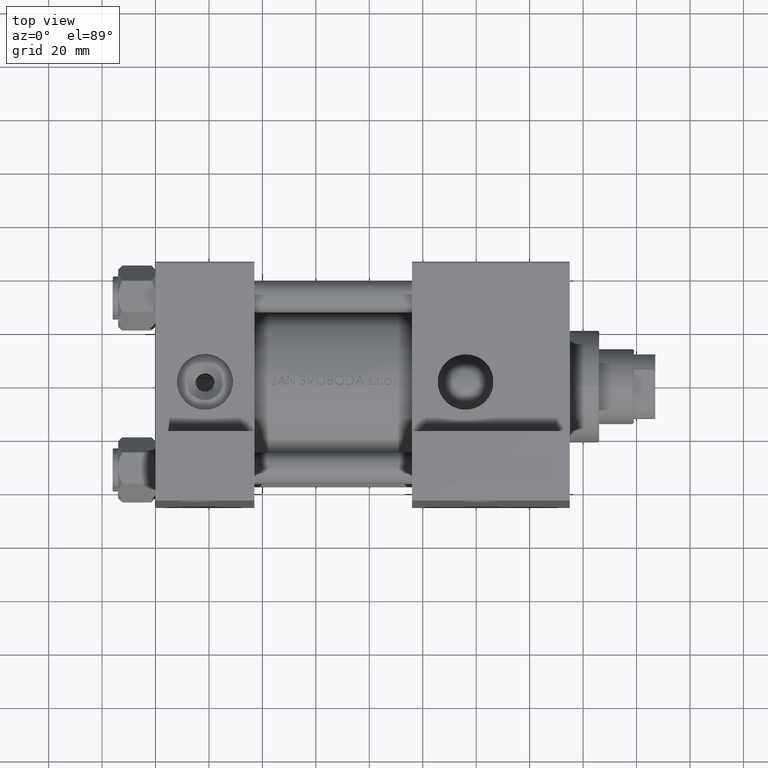
[diagram: clean part render]
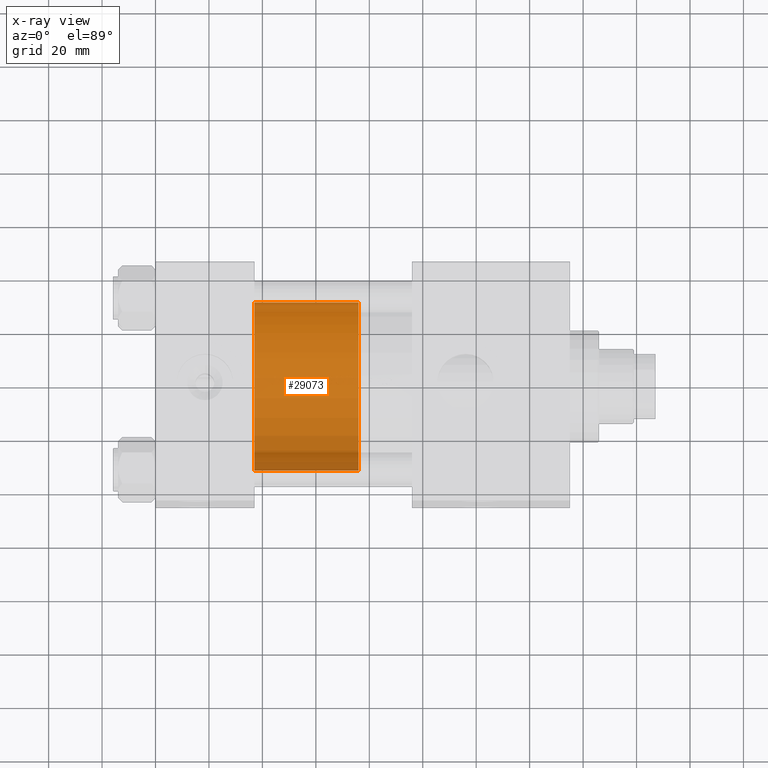
[diagram: x-ray — body ghosted, one internal face saturated and labeled with its STEP entity id]
A machine part, top view, then the same camera in x-ray: the body is ghosted and one INTERNAL B-rep face — a face not visible from any outside direction — is saturated and labeled: STEP entity #29073.
In plain terms, the highlighted cylindrical surface (partial cylindrical patch) has radius 31.5 mm, axis along (-1, 0, 0).
Its self-contained STEP definition (entity closure, byte-faithful):
#662 = CARTESIAN_POINT ( 'NONE',  ( -31.50000000000000000, 0.000000000000000000, 39.00000000000000000 ) ) ;
#1297 = CARTESIAN_POINT ( 'NONE',  ( 0.000000000000000000, 0.000000000000000000, 0.000000000000000000 ) ) ;
#2380 = ORIENTED_EDGE ( 'NONE', *, *, #33021, .F. ) ;
#2455 = ORIENTED_EDGE ( 'NONE', *, *, #7659, .F. ) ;
#4450 = VERTEX_POINT ( 'NONE', #43824 ) ;
#4986 = VECTOR ( 'NONE', #28408, 1000.000000000000000 ) ;
#6271 = CARTESIAN_POINT ( 'NONE',  ( 31.50000000000000000, 3.857637417314162689E-15, 39.00000000000000000 ) ) ;
#6277 = EDGE_CURVE ( 'NONE', #45935, #4450, #28724, .T. ) ;
#6875 = AXIS2_PLACEMENT_3D ( 'NONE', #23984, #38662, #23747 ) ;
#7659 = EDGE_CURVE ( 'NONE', #32216, #43137, #14160, .T. ) ;
#8480 = EDGE_CURVE ( 'NONE', #32216, #45935, #35632, .T. ) ;
#9298 = CYLINDRICAL_SURFACE ( 'NONE', #6875, 31.50000000000000000 ) ;
#10830 = VECTOR ( 'NONE', #31467, 1000.000000000000000 ) ;
#14160 = CIRCLE ( 'NONE', #41814, 31.50000000000000000 ) ;
#23555 = LINE ( 'NONE', #27401, #10830 ) ;
#23747 = DIRECTION ( 'NONE',  ( -1.000000000000000000, 0.000000000000000000, 0.000000000000000000 ) ) ;
#23984 = CARTESIAN_POINT ( 'NONE',  ( 0.000000000000000000, 0.000000000000000000, 39.00000000000000000 ) ) ;
#25742 = ORIENTED_EDGE ( 'NONE', *, *, #8480, .T. ) ;
#26620 = CARTESIAN_POINT ( 'NONE',  ( 31.50000000000000000, 3.857637417314162689E-15, 0.000000000000000000 ) ) ;
#27401 = CARTESIAN_POINT ( 'NONE',  ( -31.50000000000000000, 0.000000000000000000, 39.00000000000000000 ) ) ;
#28408 = DIRECTION ( 'NONE',  ( -0.000000000000000000, -0.000000000000000000, -1.000000000000000000 ) ) ;
#28724 = CIRCLE ( 'NONE', #47192, 31.50000000000000000 ) ;
#29073 = ADVANCED_FACE ( 'NONE', ( #46366 ), #9298, .T. ) ;
#30051 = EDGE_LOOP ( 'NONE', ( #2455, #25742, #34231, #2380 ) ) ;
#30712 = DIRECTION ( 'NONE',  ( 1.000000000000000000, 0.000000000000000000, 0.000000000000000000 ) ) ;
#31467 = DIRECTION ( 'NONE',  ( -0.000000000000000000, -0.000000000000000000, -1.000000000000000000 ) ) ;
#31986 = CARTESIAN_POINT ( 'NONE',  ( 31.50000000000000000, 3.857637417314162689E-15, 39.00000000000000000 ) ) ;
#32216 = VERTEX_POINT ( 'NONE', #31986 ) ;
#32726 = DIRECTION ( 'NONE',  ( 0.000000000000000000, 0.000000000000000000, 1.000000000000000000 ) ) ;
#33021 = EDGE_CURVE ( 'NONE', #43137, #4450, #23555, .T. ) ;
#34231 = ORIENTED_EDGE ( 'NONE', *, *, #6277, .T. ) ;
#35152 = DIRECTION ( 'NONE',  ( 0.000000000000000000, 0.000000000000000000, 1.000000000000000000 ) ) ;
#35632 = LINE ( 'NONE', #6271, #4986 ) ;
#38662 = DIRECTION ( 'NONE',  ( -0.000000000000000000, -0.000000000000000000, -1.000000000000000000 ) ) ;
#41097 = CARTESIAN_POINT ( 'NONE',  ( 0.000000000000000000, 0.000000000000000000, 39.00000000000000000 ) ) ;
#41814 = AXIS2_PLACEMENT_3D ( 'NONE', #41097, #32726, #30712 ) ;
#43137 = VERTEX_POINT ( 'NONE', #662 ) ;
#43824 = CARTESIAN_POINT ( 'NONE',  ( -31.50000000000000000, 0.000000000000000000, 0.000000000000000000 ) ) ;
#45342 = DIRECTION ( 'NONE',  ( 1.000000000000000000, 0.000000000000000000, 0.000000000000000000 ) ) ;
#45935 = VERTEX_POINT ( 'NONE', #26620 ) ;
#46366 = FACE_OUTER_BOUND ( 'NONE', #30051, .T. ) ;
#47192 = AXIS2_PLACEMENT_3D ( 'NONE', #1297, #35152, #45342 ) ;